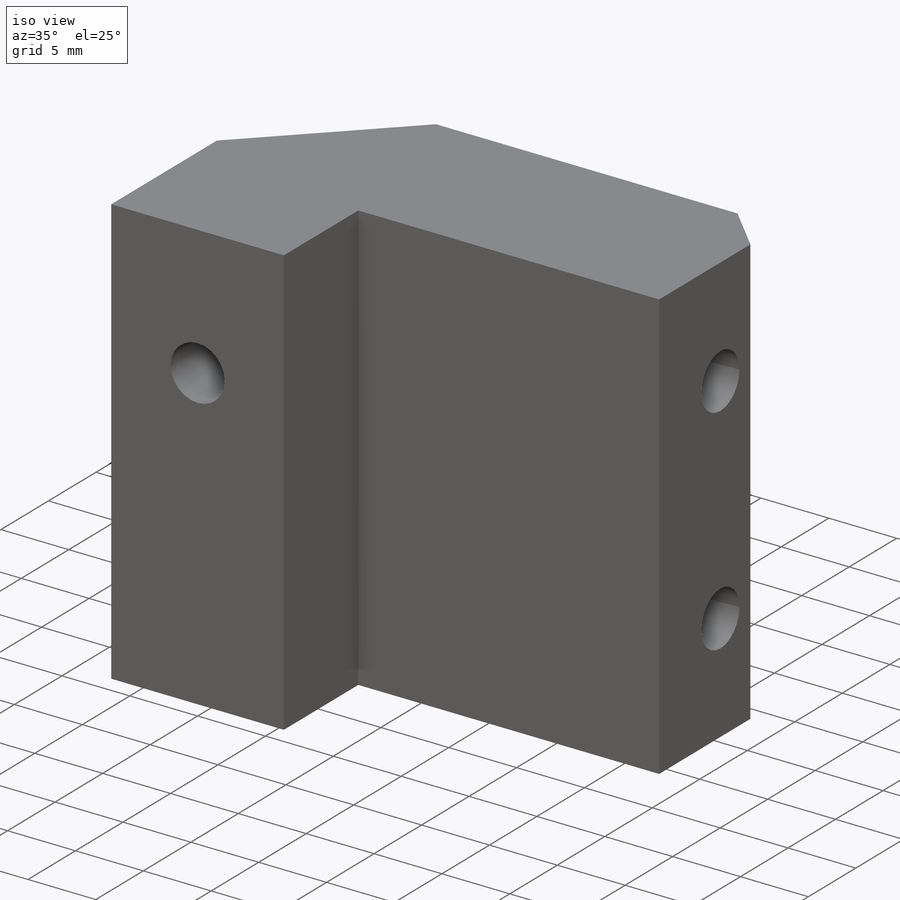
[diagram: iso view]
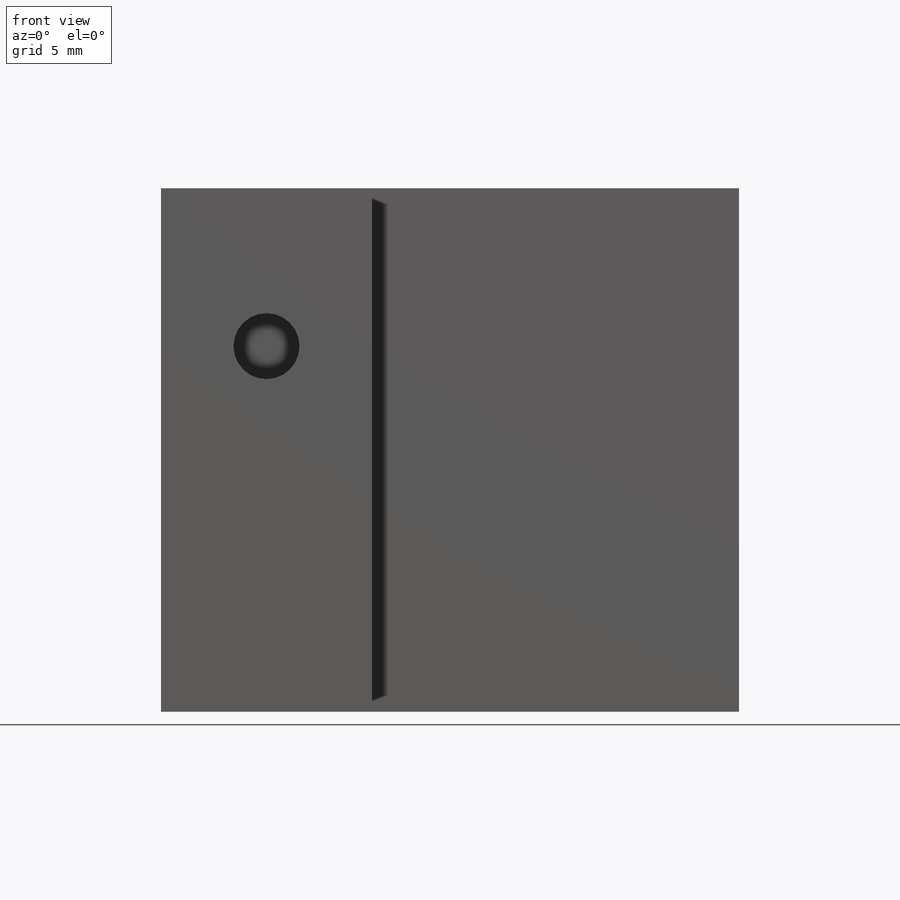
[diagram: front view]
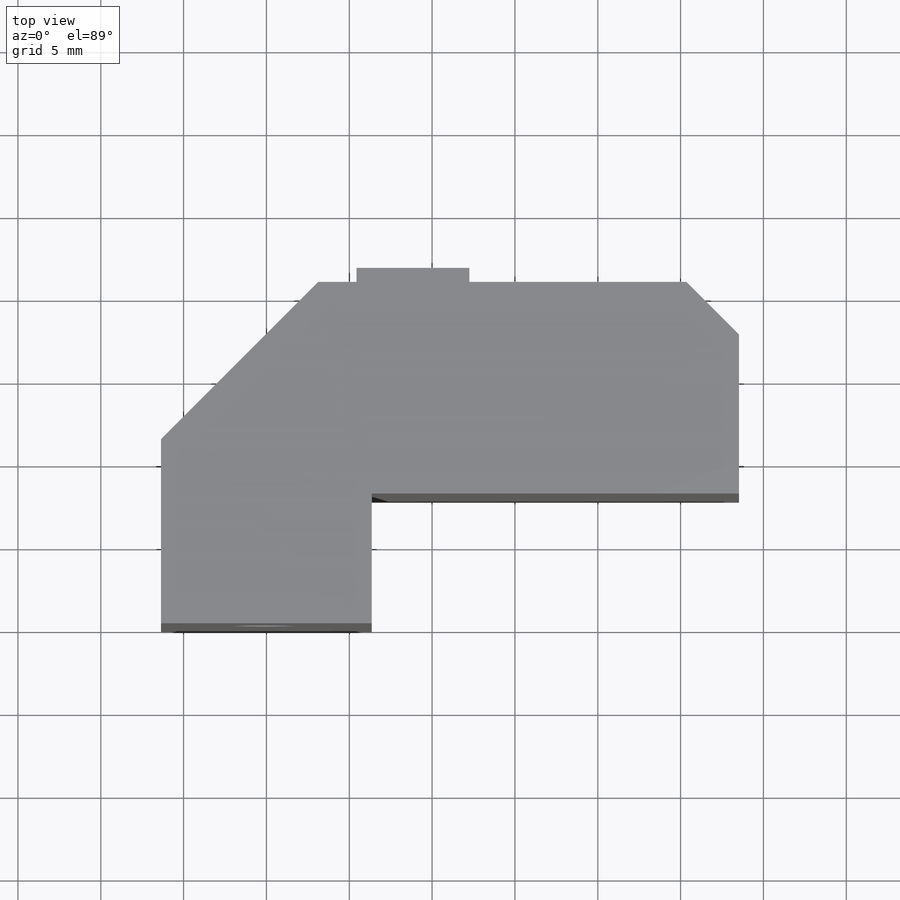
[diagram: top view]
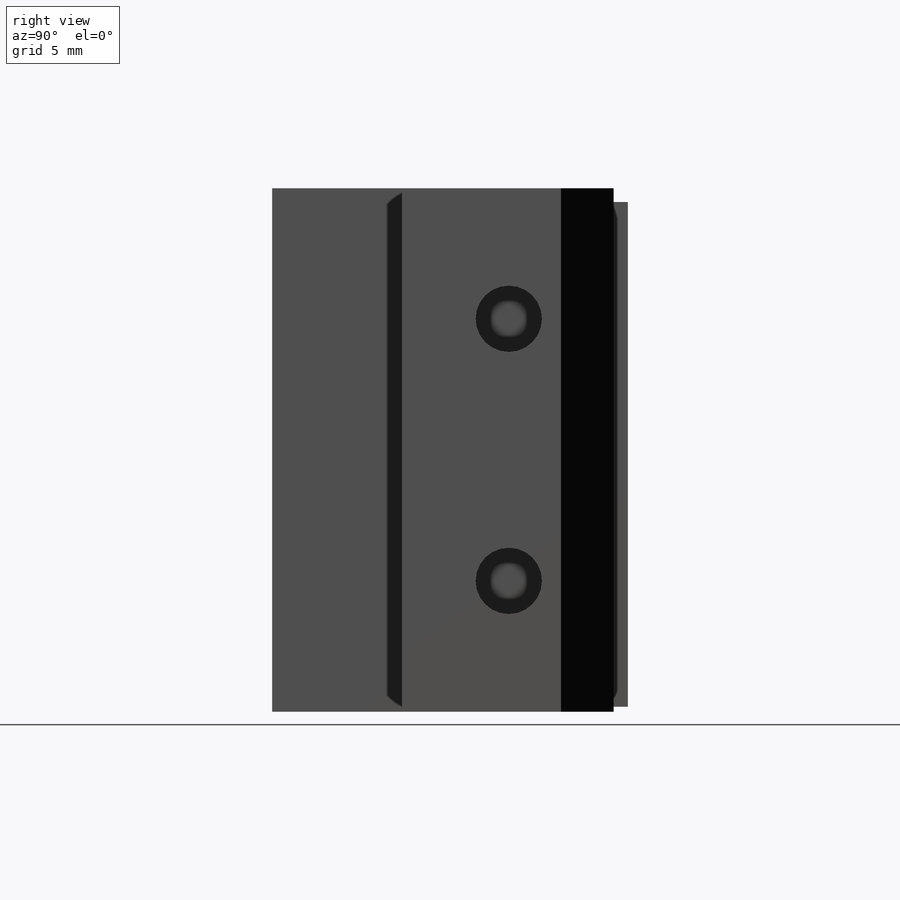
[diagram: right view]
SOLIDWORKS PART (.sldprt)
format: sldprt  version: not decoded by parser v0  size: 230,912 bytes
history: native  units: mm
features: sketch x4, extrude x2, cut_extrude x2, material x1 (+16 scaffold rows collapsed)
feature tree (25):
  scaffold x16  (default folders/planes/origin — collapsed)
  material  "1060 Alloy"
  sketch  "Sketch1"  dims[c1.D1=12.78mm c1.D2=~9.139522mm c2.D2=45.0deg c2.D3=34.89mm c2.D4=12.72mm c2.D5=4.2mm c2.D6=4.19mm c2.D7=20.61mm c2.D8=9.5mm c2.D9=3.175mm]
  extrude  "Boss-Extrude1"  Depth=15.8mm
  sketch  "Sketch2"  dims[D1=7.55mm D2=20.07mm]
  cut_extrude  "Cut-Extrude1"  Depth=6.15mm
  sketch  "Sketch3"  dims[D1=4.0mm D2=5.89mm D3=4.45mm]
  cut_extrude  "Cut-Extrude2"  Depth=16.2mm
  sketch  "Sketch4"  dims[D1=13.1mm D2=2.3mm D3=0.83mm D4=0.3mm]
  extrude  "Boss-Extrude2"  Depth=0.86mm
decode coverage: 8 of 8 modeling features carry decoded parameters
note: ~ marks probable driven/reference dimensions
note: suppression state not decoded; provenance and decode notes live in map.json
